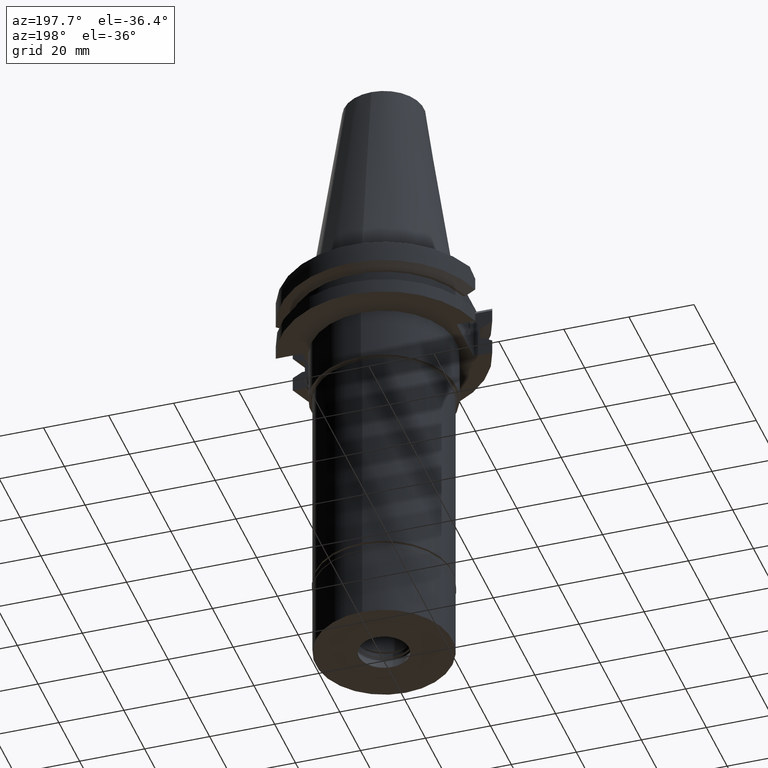
[diagram: clean part render]
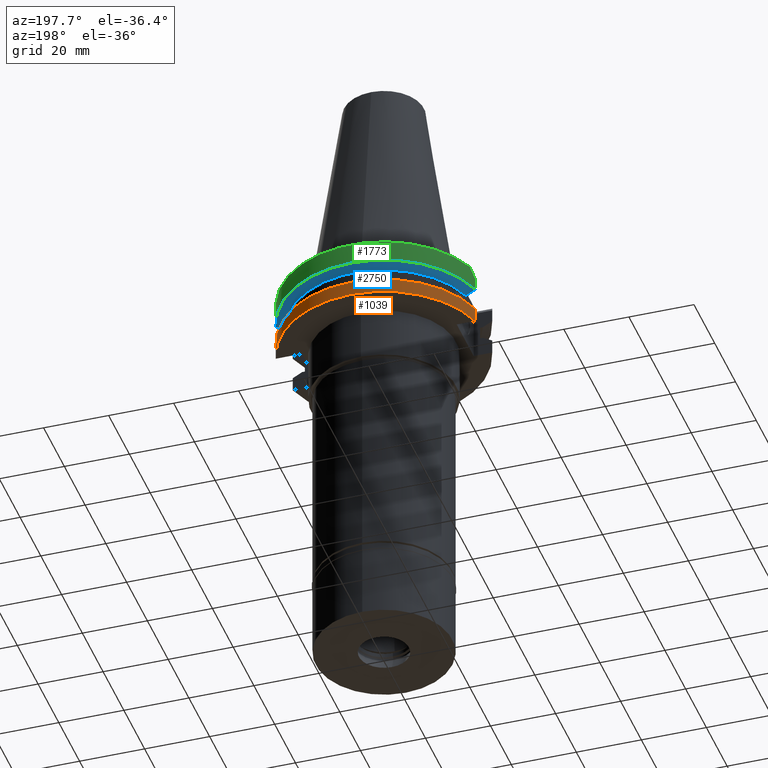
[diagram: same view with three faces highlighted in distinct colors, each labeled with its STEP entity id]
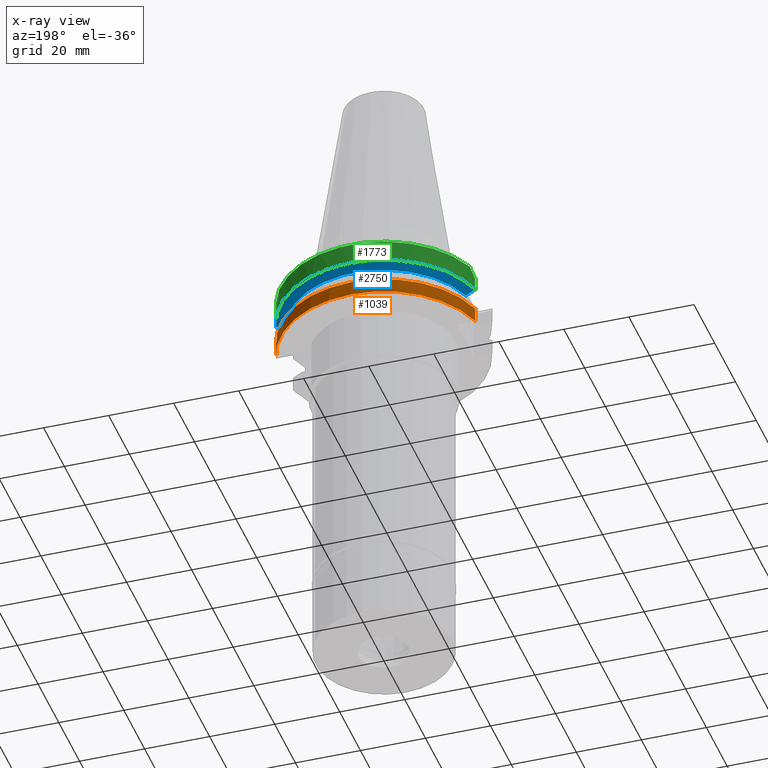
[diagram: x-ray of the same camera — body ghosted, the three highlighted faces saturated]
A machine part, auxiliary view with three faces highlighted in distinct colors.
The next image is the same camera in x-ray (body ghosted, the three faces saturated) — at least one of them is partly hidden behind the body in this view.
Their STEP definitions:

[orange] entity #1039 — the highlighted cylindrical surface (partial cylindrical patch) has radius 31.75 mm, axis along (0, 0, -1).
#58 = EDGE_CURVE ( 'NONE', #2892, #3049, #2412, .T. ) ;
#160 = LINE ( 'NONE', #2494, #2403 ) ;
#203 = CYLINDRICAL_SURFACE ( 'NONE', #1226, 31.75000000000000000 ) ;
#244 = DIRECTION ( 'NONE',  ( 0.0000000000000000000, 0.0000000000000000000, 1.000000000000000000 ) ) ;
#371 = CARTESIAN_POINT ( 'NONE',  ( 30.67550165945999652, 8.189999874275001090, -14.65366564559000118 ) ) ;
#382 = ORIENTED_EDGE ( 'NONE', *, *, #2195, .F. ) ;
#409 = EDGE_CURVE ( 'NONE', #1091, #1835, #1882, .T. ) ;
#440 = DIRECTION ( 'NONE',  ( 0.0000000000000000000, 0.0000000000000000000, -1.000000000000000000 ) ) ;
#735 = AXIS2_PLACEMENT_3D ( 'NONE', #2278, #244, #1996 ) ;
#960 = FACE_OUTER_BOUND ( 'NONE', #2938, .T. ) ;
#994 = AXIS2_PLACEMENT_3D ( 'NONE', #1631, #2643, #1369 ) ;
#1039 = ADVANCED_FACE ( 'NONE', ( #960 ), #203, .T. ) ;
#1041 = VECTOR ( 'NONE', #1346, 999.9999999999998863 ) ;
#1091 = VERTEX_POINT ( 'NONE', #2451 ) ;
#1145 = CARTESIAN_POINT ( 'NONE',  ( -30.67550146397999811, 8.190000606419999940, -14.65367218816000161 ) ) ;
#1171 = DIRECTION ( 'NONE',  ( 0.0000000000000000000, -1.000000000000000000, 0.0000000000000000000 ) ) ;
#1226 = AXIS2_PLACEMENT_3D ( 'NONE', #2499, #440, #1171 ) ;
#1250 = DIRECTION ( 'NONE',  ( 7.635416442369996478E-09, -2.859775794704998656E-08, 0.9999999999999995559 ) ) ;
#1338 = ORIENTED_EDGE ( 'NONE', *, *, #58, .T. ) ;
#1346 = DIRECTION ( 'NONE',  ( -3.682764648897927296E-08, -1.379378684742972089E-07, -0.9999999999999898970 ) ) ;
#1369 = DIRECTION ( 'NONE',  ( -0.9661575315241073270, 0.2579527559055020958, 0.0000000000000000000 ) ) ;
#1465 = ORIENTED_EDGE ( 'NONE', *, *, #409, .T. ) ;
#1631 = CARTESIAN_POINT ( 'NONE',  ( 0.0000000000000000000, 1.055026073064999954E-14, -14.65366676908000088 ) ) ;
#1835 = VERTEX_POINT ( 'NONE', #2219 ) ;
#1882 = CIRCLE ( 'NONE', #735, 31.75000000000000000 ) ;
#1996 = DIRECTION ( 'NONE',  ( 0.0000000000000000000, 1.000000000000000000, 0.0000000000000000000 ) ) ;
#2077 = EDGE_CURVE ( 'NONE', #2892, #1835, #2913, .T. ) ;
#2195 = EDGE_CURVE ( 'NONE', #1091, #3049, #160, .T. ) ;
#2219 = CARTESIAN_POINT ( 'NONE',  ( -30.67550162588999640, 8.189999999999999503, -19.05000000000000071 ) ) ;
#2278 = CARTESIAN_POINT ( 'NONE',  ( 0.0000000000000000000, 2.175431957834999696E-14, -19.05000000000000071 ) ) ;
#2403 = VECTOR ( 'NONE', #1250, 1000.000000000000000 ) ;
#2412 = CIRCLE ( 'NONE', #994, 31.74999999999998579 ) ;
#2451 = CARTESIAN_POINT ( 'NONE',  ( 30.67550162588999640, 8.189999999999999503, -19.05000000000000071 ) ) ;
#2494 = CARTESIAN_POINT ( 'NONE',  ( 30.67550162588999640, 8.189999999999999503, -19.05000000000000071 ) ) ;
#2499 = CARTESIAN_POINT ( 'NONE',  ( 0.0000000000000000000, 2.175431957834999696E-14, 77.63750000000000284 ) ) ;
#2503 = CARTESIAN_POINT ( 'NONE',  ( -30.67550162588999640, 8.190000000000997815, -14.65366676908000088 ) ) ;
#2643 = DIRECTION ( 'NONE',  ( 0.0000000000000000000, 0.0000000000000000000, -1.000000000000000000 ) ) ;
#2791 = ORIENTED_EDGE ( 'NONE', *, *, #2077, .F. ) ;
#2892 = VERTEX_POINT ( 'NONE', #2503 ) ;
#2913 = LINE ( 'NONE', #1145, #1041 ) ;
#2938 = EDGE_LOOP ( 'NONE', ( #382, #1465, #2791, #1338 ) ) ;
#3049 = VERTEX_POINT ( 'NONE', #371 ) ;

[blue] entity #2750 — the highlighted conical surface has half-angle 60 deg.
#11 = CIRCLE ( 'NONE', #178, 31.74999999999998579 ) ;
#125 = CARTESIAN_POINT ( 'NONE',  ( 27.78617704642999797, 8.189999360257999683, -9.207500000000999663 ) ) ;
#178 = AXIS2_PLACEMENT_3D ( 'NONE', #474, #2716, #455 ) ;
#226 = EDGE_CURVE ( 'NONE', #2864, #1515, #1293, .T. ) ;
#261 = EDGE_LOOP ( 'NONE', ( #1762, #426, #1356, #411 ) ) ;
#407 = DIRECTION ( 'NONE',  ( 0.0000000000000000000, 1.000000000000000000, 0.0000000000000000000 ) ) ;
#411 = ORIENTED_EDGE ( 'NONE', *, *, #1177, .F. ) ;
#426 = ORIENTED_EDGE ( 'NONE', *, *, #3084, .T. ) ;
#455 = DIRECTION ( 'NONE',  ( 0.9661575315241073270, 0.2579527559055020958, 0.0000000000000000000 ) ) ;
#474 = CARTESIAN_POINT ( 'NONE',  ( 0.0000000000000000000, 1.121722380078999823E-14, -7.601333230925999551 ) ) ;
#686 = CARTESIAN_POINT ( 'NONE',  ( 30.67550165944999918, 8.189999874299001448, -7.601334354241999769 ) ) ;
#723 = DIRECTION ( 'NONE',  ( 0.0000000000000000000, 1.000000000000000000, 0.0000000000000000000 ) ) ;
#963 = CARTESIAN_POINT ( 'NONE',  ( 0.0000000000000000000, 1.121722380078999823E-14, -8.404416615464000984 ) ) ;
#1177 = EDGE_CURVE ( 'NONE', #2864, #2260, #11, .T. ) ;
#1233 = DIRECTION ( 'NONE',  ( 0.0000000000000000000, 0.0000000000000000000, 1.000000000000000000 ) ) ;
#1293 = B_SPLINE_CURVE_WITH_KNOTS ( 'NONE', 3,
 ( #1454, #2916, #1439, #1893 ),
 .UNSPECIFIED., .F., .F.,
 ( 4, 4 ),
 ( 0.0000000000000000000, 1.000000000000000000 ),
 .UNSPECIFIED. ) ;
#1356 = ORIENTED_EDGE ( 'NONE', *, *, #1727, .T. ) ;
#1439 = CARTESIAN_POINT ( 'NONE',  ( 28.70626004080536831, 8.189998719102829838, -8.697957594305835372 ) ) ;
#1454 = CARTESIAN_POINT ( 'NONE',  ( 30.67550165944999918, 8.189999874299001448, -7.601334354241999769 ) ) ;
#1515 = VERTEX_POINT ( 'NONE', #125 ) ;
#1576 = B_SPLINE_CURVE_WITH_KNOTS ( 'NONE', 3,
 ( #2952, #2179, #1997, #2510 ),
 .UNSPECIFIED., .F., .F.,
 ( 4, 4 ),
 ( 0.0000000000000000000, 1.000000000000000000 ),
 .UNSPECIFIED. ) ;
#1632 = CONICAL_SURFACE ( 'NONE', #2891, 30.35901877526999826, 1.047197551196400456 ) ;
#1709 = DIRECTION ( 'NONE',  ( 0.0000000000000000000, 0.0000000000000000000, 1.000000000000000000 ) ) ;
#1727 = EDGE_CURVE ( 'NONE', #3292, #2260, #1576, .T. ) ;
#1762 = ORIENTED_EDGE ( 'NONE', *, *, #226, .T. ) ;
#1838 = CIRCLE ( 'NONE', #2482, 28.96803755052999918 ) ;
#1893 = CARTESIAN_POINT ( 'NONE',  ( 27.78617704642999797, 8.189999360257999683, -9.207500000000999663 ) ) ;
#1924 = CARTESIAN_POINT ( 'NONE',  ( 0.0000000000000000000, 1.121722380078999823E-14, -9.207500000002999840 ) ) ;
#1997 = CARTESIAN_POINT ( 'NONE',  ( -29.66936146498072091, 8.190001212306119882, -8.162569409529835340 ) ) ;
#2179 = CARTESIAN_POINT ( 'NONE',  ( -28.70625673782625498, 8.190000382350426378, -8.697959174450595299 ) ) ;
#2260 = VERTEX_POINT ( 'NONE', #3222 ) ;
#2304 = CARTESIAN_POINT ( 'NONE',  ( -27.78616453792999863, 8.190000190957999138, -9.207500000000999663 ) ) ;
#2482 = AXIS2_PLACEMENT_3D ( 'NONE', #1924, #1233, #723 ) ;
#2510 = CARTESIAN_POINT ( 'NONE',  ( -30.67550146399999988, 8.190000606370999137, -7.601327812044000432 ) ) ;
#2716 = DIRECTION ( 'NONE',  ( 0.0000000000000000000, 0.0000000000000000000, 1.000000000000000000 ) ) ;
#2750 = ADVANCED_FACE ( 'NONE', ( #2925 ), #1632, .T. ) ;
#2864 = VERTEX_POINT ( 'NONE', #686 ) ;
#2891 = AXIS2_PLACEMENT_3D ( 'NONE', #963, #1709, #407 ) ;
#2916 = CARTESIAN_POINT ( 'NONE',  ( 29.66936067371884533, 8.189999748690357961, -8.162570072455652692 ) ) ;
#2925 = FACE_OUTER_BOUND ( 'NONE', #261, .T. ) ;
#2952 = CARTESIAN_POINT ( 'NONE',  ( -27.78616453792999863, 8.190000190957999138, -9.207500000000999663 ) ) ;
#3084 = EDGE_CURVE ( 'NONE', #1515, #3292, #1838, .T. ) ;
#3222 = CARTESIAN_POINT ( 'NONE',  ( -30.67550146399999988, 8.190000606370999137, -7.601327812044000432 ) ) ;
#3292 = VERTEX_POINT ( 'NONE', #2304 ) ;

[green] entity #1773 — the highlighted cylindrical surface (partial cylindrical patch) has radius 31.75 mm, axis along (0, 0, -1).
#5 = EDGE_CURVE ( 'NONE', #2752, #429, #1261, .T. ) ;
#11 = CIRCLE ( 'NONE', #178, 31.74999999999998579 ) ;
#24 = DIRECTION ( 'NONE',  ( 4.149700359200944730E-08, 1.554267328186979879E-07, -0.9999999999999870104 ) ) ;
#66 = CARTESIAN_POINT ( 'NONE',  ( 30.67550165944999918, 8.189999874299001448, -7.601334354241999769 ) ) ;
#88 = EDGE_CURVE ( 'NONE', #2805, #429, #2172, .T. ) ;
#164 = CARTESIAN_POINT ( 'NONE',  ( 0.0000000000000000000, 2.175431957834999696E-14, 77.63750000000000284 ) ) ;
#178 = AXIS2_PLACEMENT_3D ( 'NONE', #474, #2716, #455 ) ;
#297 = CARTESIAN_POINT ( 'NONE',  ( 30.43183015827552040, 9.102667216255303728, -2.787332783744695064 ) ) ;
#429 = VERTEX_POINT ( 'NONE', #1979 ) ;
#455 = DIRECTION ( 'NONE',  ( 0.9661575315241073270, 0.2579527559055020958, 0.0000000000000000000 ) ) ;
#474 = CARTESIAN_POINT ( 'NONE',  ( 0.0000000000000000000, 1.121722380078999823E-14, -7.601333230925999551 ) ) ;
#504 = B_SPLINE_CURVE_WITH_KNOTS ( 'NONE', 3,
 ( #659, #2185, #3191, #2203 ),
 .UNSPECIFIED., .F., .F.,
 ( 4, 4 ),
 ( 0.0000000000000000000, 1.000000000000000000 ),
 .UNSPECIFIED. ) ;
#509 = AXIS2_PLACEMENT_3D ( 'NONE', #164, #3258, #1007 ) ;
#512 = ORIENTED_EDGE ( 'NONE', *, *, #5, .T. ) ;
#516 = AXIS2_PLACEMENT_3D ( 'NONE', #2598, #2067, #2372 ) ;
#553 = VERTEX_POINT ( 'NONE', #1840 ) ;
#571 = EDGE_CURVE ( 'NONE', #553, #2260, #2574, .T. ) ;
#659 = CARTESIAN_POINT ( 'NONE',  ( -29.82399034335000110, 10.89000000000000057, -0.9999999999999000799 ) ) ;
#666 = CARTESIAN_POINT ( 'NONE',  ( -29.82399034335000110, 10.89000000000000057, -0.9999999999999000799 ) ) ;
#686 = CARTESIAN_POINT ( 'NONE',  ( 30.67550165944999918, 8.189999874299001448, -7.601334354241999769 ) ) ;
#729 = FACE_OUTER_BOUND ( 'NONE', #1591, .T. ) ;
#828 = CARTESIAN_POINT ( 'NONE',  ( 29.82399034335000110, 10.89000000000000057, -1.000000000001000089 ) ) ;
#1007 = DIRECTION ( 'NONE',  ( 0.0000000000000000000, -1.000000000000000000, 0.0000000000000000000 ) ) ;
#1010 = EDGE_CURVE ( 'NONE', #2752, #553, #504, .T. ) ;
#1034 = ORIENTED_EDGE ( 'NONE', *, *, #2662, .F. ) ;
#1086 = VECTOR ( 'NONE', #24, 1000.000000000000227 ) ;
#1176 = CARTESIAN_POINT ( 'NONE',  ( 30.67550162588999640, 8.189999999999999503, -3.700000000000000178 ) ) ;
#1177 = EDGE_CURVE ( 'NONE', #2864, #2260, #11, .T. ) ;
#1261 = CIRCLE ( 'NONE', #516, 31.75000000000000000 ) ;
#1591 = EDGE_LOOP ( 'NONE', ( #2526, #2889, #1619, #512, #2628, #1034 ) ) ;
#1619 = ORIENTED_EDGE ( 'NONE', *, *, #1010, .F. ) ;
#1773 = ADVANCED_FACE ( 'NONE', ( #729 ), #3277, .T. ) ;
#1840 = CARTESIAN_POINT ( 'NONE',  ( -30.67550162588999640, 8.189999999999999503, -3.700000000000000178 ) ) ;
#1902 = DIRECTION ( 'NONE',  ( -8.602505381978995699E-09, 3.222008601250998274E-08, 0.9999999999999994449 ) ) ;
#1979 = CARTESIAN_POINT ( 'NONE',  ( 29.82399034335000110, 10.89000000000000057, -1.000000000001000089 ) ) ;
#2054 = VECTOR ( 'NONE', #1902, 1000.000000000000114 ) ;
#2067 = DIRECTION ( 'NONE',  ( 0.0000000000000000000, 0.0000000000000000000, -1.000000000000000000 ) ) ;
#2172 = B_SPLINE_CURVE_WITH_KNOTS ( 'NONE', 3,
 ( #2870, #297, #2330, #828 ),
 .UNSPECIFIED., .F., .F.,
 ( 4, 4 ),
 ( 0.0000000000000000000, 1.000000000000000000 ),
 .UNSPECIFIED. ) ;
#2185 = CARTESIAN_POINT ( 'NONE',  ( -30.14799306409551249, 10.00266721625513888, -1.887332783744861242 ) ) ;
#2203 = CARTESIAN_POINT ( 'NONE',  ( -30.67550162588999640, 8.189999999999999503, -3.700000000000000178 ) ) ;
#2260 = VERTEX_POINT ( 'NONE', #3222 ) ;
#2330 = CARTESIAN_POINT ( 'NONE',  ( 30.14799306409551960, 10.00266721625513888, -1.887332783744861242 ) ) ;
#2350 = CARTESIAN_POINT ( 'NONE',  ( -30.67550162588999640, 8.189999999999999503, -3.700000000000000178 ) ) ;
#2372 = DIRECTION ( 'NONE',  ( 0.0000000000000000000, 1.000000000000000000, 0.0000000000000000000 ) ) ;
#2526 = ORIENTED_EDGE ( 'NONE', *, *, #1177, .T. ) ;
#2574 = LINE ( 'NONE', #2350, #1086 ) ;
#2598 = CARTESIAN_POINT ( 'NONE',  ( 0.0000000000000000000, 2.175431957834999696E-14, -0.9999999999999000799 ) ) ;
#2628 = ORIENTED_EDGE ( 'NONE', *, *, #88, .F. ) ;
#2662 = EDGE_CURVE ( 'NONE', #2864, #2805, #3112, .T. ) ;
#2716 = DIRECTION ( 'NONE',  ( 0.0000000000000000000, 0.0000000000000000000, 1.000000000000000000 ) ) ;
#2752 = VERTEX_POINT ( 'NONE', #666 ) ;
#2805 = VERTEX_POINT ( 'NONE', #1176 ) ;
#2864 = VERTEX_POINT ( 'NONE', #686 ) ;
#2870 = CARTESIAN_POINT ( 'NONE',  ( 30.67550162588999640, 8.189999999999999503, -3.700000000000000178 ) ) ;
#2889 = ORIENTED_EDGE ( 'NONE', *, *, #571, .F. ) ;
#3112 = LINE ( 'NONE', #66, #2054 ) ;
#3191 = CARTESIAN_POINT ( 'NONE',  ( -30.43183015827551330, 9.102667216255303728, -2.787332783744695064 ) ) ;
#3222 = CARTESIAN_POINT ( 'NONE',  ( -30.67550146399999988, 8.190000606370999137, -7.601327812044000432 ) ) ;
#3258 = DIRECTION ( 'NONE',  ( 0.0000000000000000000, 0.0000000000000000000, -1.000000000000000000 ) ) ;
#3277 = CYLINDRICAL_SURFACE ( 'NONE', #509, 31.75000000000000000 ) ;